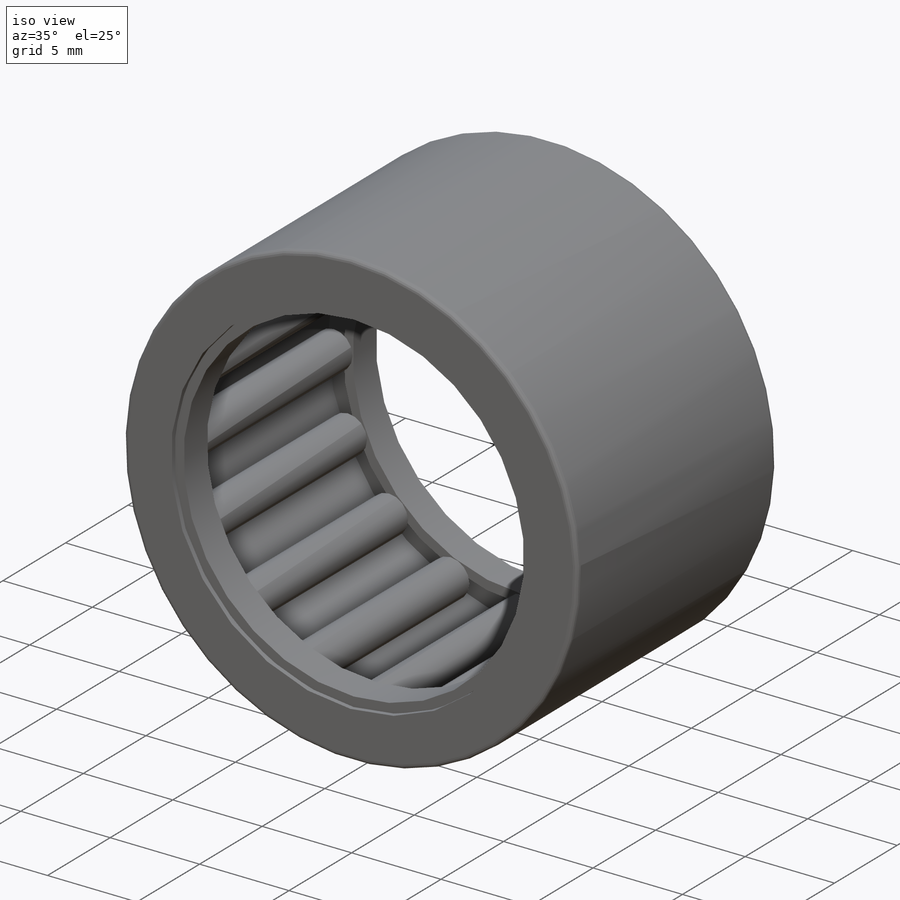
[diagram: iso view]
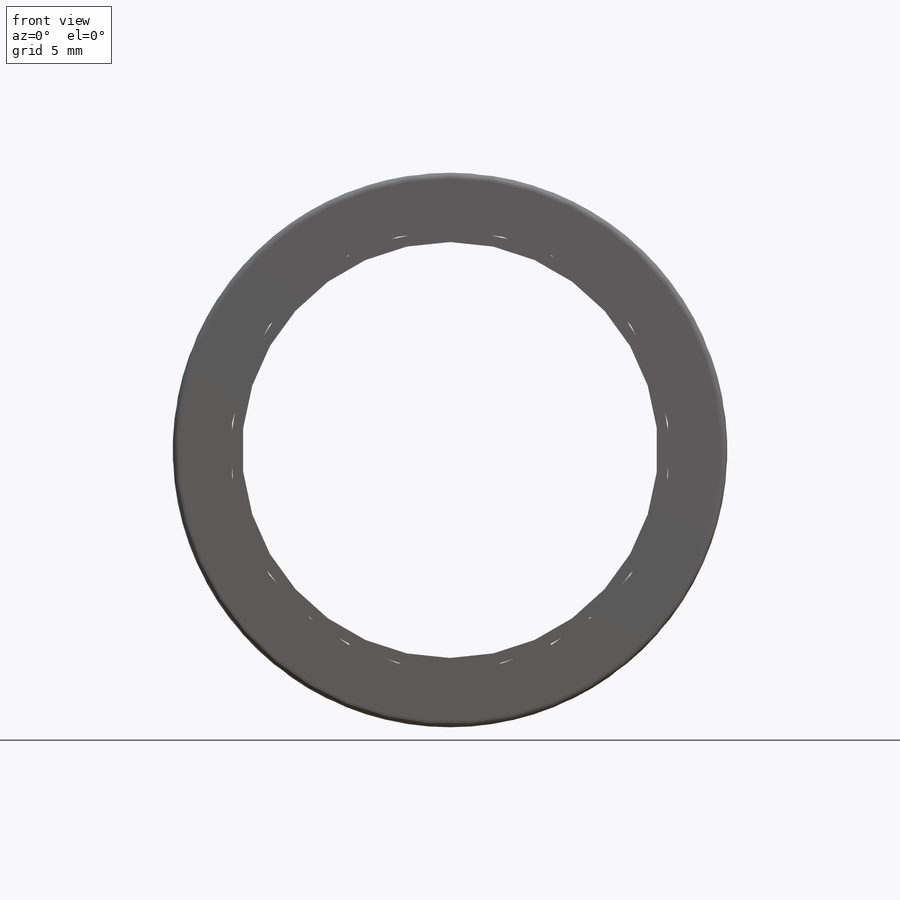
[diagram: front view]
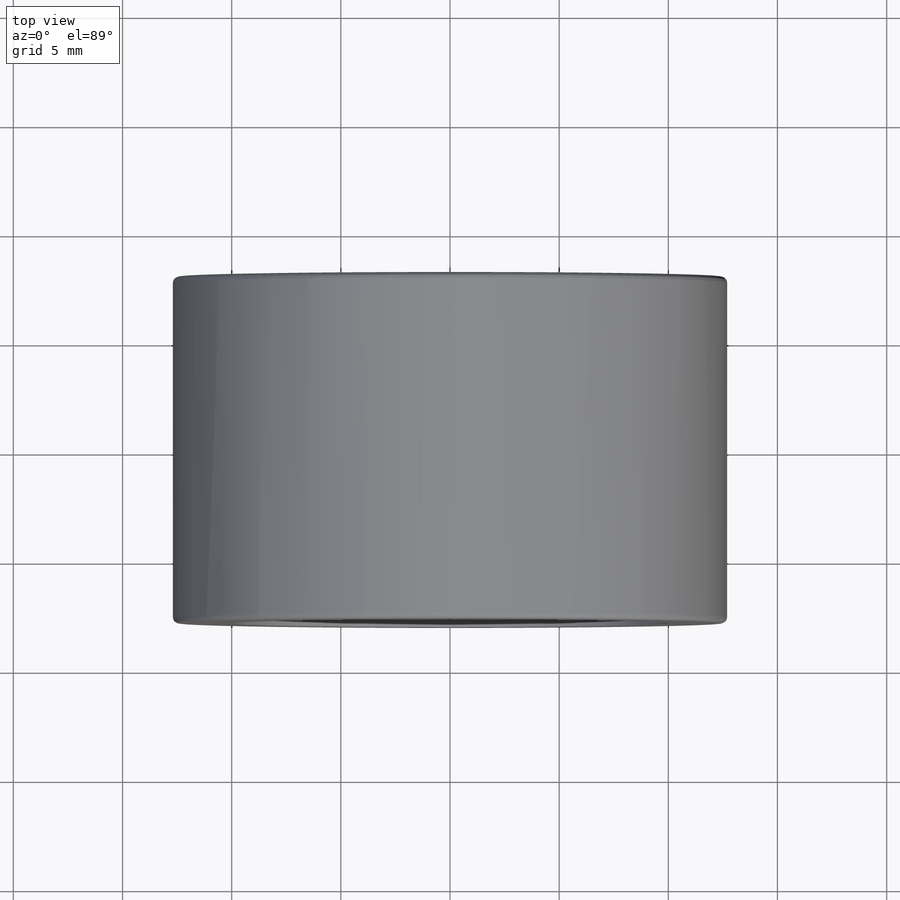
[diagram: top view]
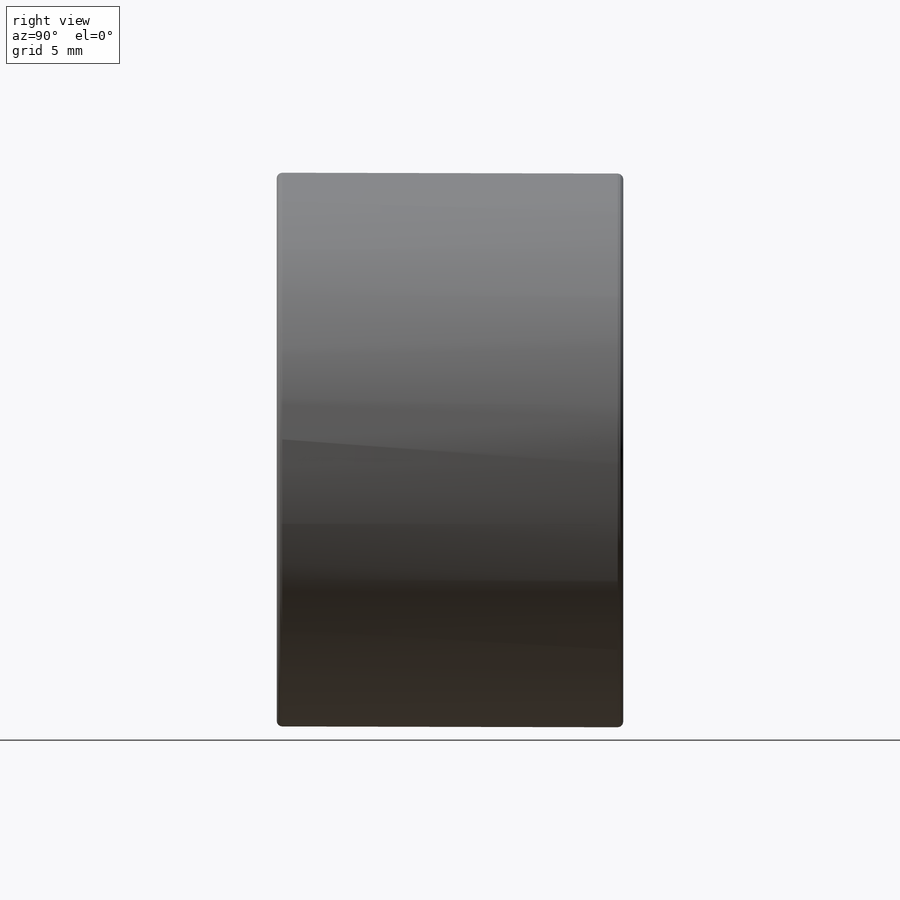
[diagram: right view]
SOLIDWORKS PART (.sldprt)
format: sldprt  version: not decoded by parser v0  size: 431,616 bytes
history: native  units: mm
features: sketch x5, revolve x5, material x1, pattern_circular x1, fillet x1 (+13 scaffold rows collapsed)
feature tree (26):
  scaffold x13  (default folders/planes/origin — collapsed)
  material  "Alloy Steel"
  sketch  "Sketch1"  dims[Width=15.875mm OD=25.4mm Shaft Dia=19.05mm]
  revolve  "Revolve1"  Angle=360deg
  sketch  "Sketch2"  dims[D1=~0.427318mm D2=~0.187969mm]
  revolve  "Revolve2"  Angle=360deg
  sketch  "Sketch3"
  revolve  "Revolve3"  Angle=360deg
  pattern_circular  "CirPattern1"  Count=16 Angle=22.5deg Rollers=16
  fillet  "Fillet1"  Radius=0.254mm
  sketch  "Sketch4"
  revolve  "Revolve4"  Angle=360deg
  sketch  "Sketch5"
  revolve  "Revolve5"  Angle=360deg
decode coverage: 9 of 12 modeling features carry decoded parameters
note: ~ marks probable driven/reference dimensions
note: suppression state not decoded; provenance and decode notes live in map.json
